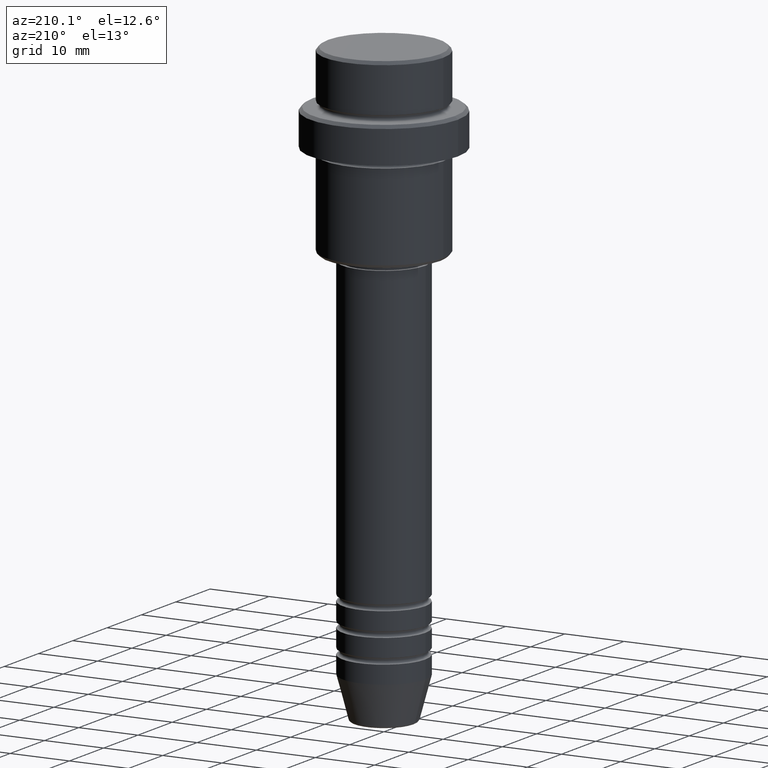
[diagram: clean part render]
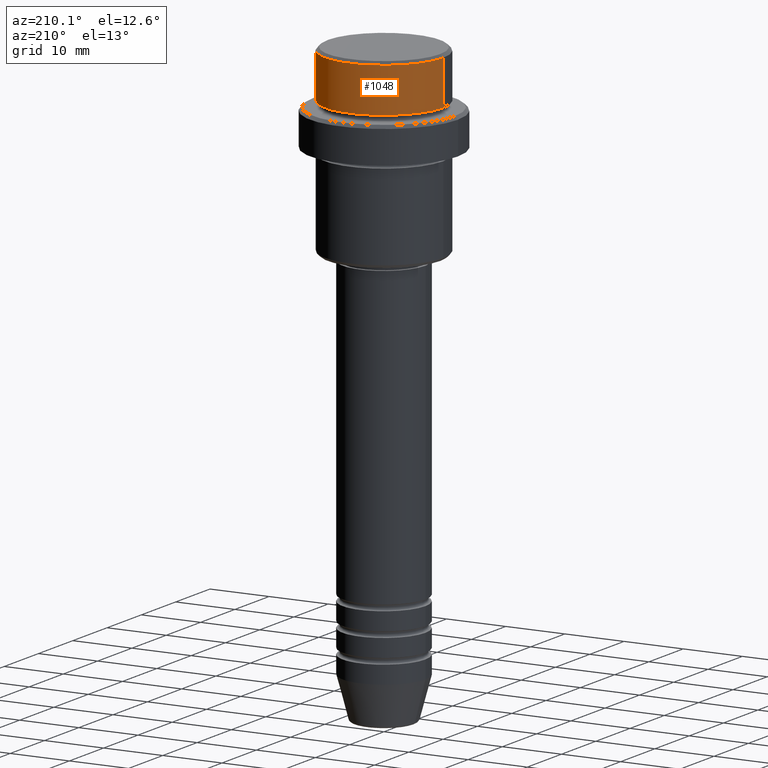
[diagram: same view with one face highlighted and labeled with its STEP entity id]
A machine part, auxiliary view. The second image highlights one B-rep face of the part: STEP entity #1048.
In plain terms, the highlighted cylindrical surface (partial cylindrical patch) has radius 10 mm, axis along (-0, -0, 1).
Its self-contained STEP definition (entity closure, byte-faithful):
#27 = ORIENTED_EDGE ( 'NONE', *, *, #802, .F. ) ;
#55 = EDGE_CURVE ( 'NONE', #1348, #685, #513, .T. ) ;
#58 = CARTESIAN_POINT ( 'NONE',  ( 9.999999999999998224, 0.000000000000000000, 0.000000000000000000 ) ) ;
#96 = DIRECTION ( 'NONE',  ( 0.000000000000000000, 0.000000000000000000, -1.000000000000000000 ) ) ;
#114 = EDGE_LOOP ( 'NONE', ( #286, #436, #591, #27 ) ) ;
#174 = VECTOR ( 'NONE', #1163, 1000.000000000000000 ) ;
#176 = CARTESIAN_POINT ( 'NONE',  ( -9.999999999999998224, 1.224646799147353059E-15, 0.000000000000000000 ) ) ;
#220 = AXIS2_PLACEMENT_3D ( 'NONE', #1168, #1375, #291 ) ;
#286 = ORIENTED_EDGE ( 'NONE', *, *, #1067, .T. ) ;
#291 = DIRECTION ( 'NONE',  ( 1.000000000000000000, 0.000000000000000000, 0.000000000000000000 ) ) ;
#337 = CARTESIAN_POINT ( 'NONE',  ( 0.000000000000000000, 0.000000000000000000, 0.000000000000000000 ) ) ;
#354 = VERTEX_POINT ( 'NONE', #1152 ) ;
#411 = LINE ( 'NONE', #58, #735 ) ;
#429 = AXIS2_PLACEMENT_3D ( 'NONE', #337, #749, #1156 ) ;
#436 = ORIENTED_EDGE ( 'NONE', *, *, #55, .T. ) ;
#507 = DIRECTION ( 'NONE',  ( -0.000000000000000000, -0.000000000000000000, 1.000000000000000000 ) ) ;
#513 = LINE ( 'NONE', #176, #174 ) ;
#591 = ORIENTED_EDGE ( 'NONE', *, *, #659, .T. ) ;
#642 = CARTESIAN_POINT ( 'NONE',  ( 0.000000000000000000, 0.000000000000000000, -0.4999999999999970024 ) ) ;
#647 = CARTESIAN_POINT ( 'NONE',  ( -9.999999999999998224, 1.224646799147353059E-15, -0.4999999999999970024 ) ) ;
#659 = EDGE_CURVE ( 'NONE', #685, #354, #876, .T. ) ;
#685 = VERTEX_POINT ( 'NONE', #647 ) ;
#735 = VECTOR ( 'NONE', #507, 1000.000000000000000 ) ;
#749 = DIRECTION ( 'NONE',  ( -0.000000000000000000, -0.000000000000000000, 1.000000000000000000 ) ) ;
#802 = EDGE_CURVE ( 'NONE', #1001, #354, #411, .T. ) ;
#825 = CIRCLE ( 'NONE', #220, 9.999999999999998224 ) ;
#876 = CIRCLE ( 'NONE', #921, 9.999999999999998224 ) ;
#921 = AXIS2_PLACEMENT_3D ( 'NONE', #642, #96, #968 ) ;
#968 = DIRECTION ( 'NONE',  ( 1.000000000000000000, 0.000000000000000000, 0.000000000000000000 ) ) ;
#1001 = VERTEX_POINT ( 'NONE', #1188 ) ;
#1048 = ADVANCED_FACE ( 'NONE', ( #1118 ), #1308, .T. ) ;
#1067 = EDGE_CURVE ( 'NONE', #1001, #1348, #825, .T. ) ;
#1118 = FACE_OUTER_BOUND ( 'NONE', #114, .T. ) ;
#1152 = CARTESIAN_POINT ( 'NONE',  ( 9.999999999999998224, 0.000000000000000000, -0.4999999999999970024 ) ) ;
#1156 = DIRECTION ( 'NONE',  ( 1.000000000000000000, 0.000000000000000000, 0.000000000000000000 ) ) ;
#1163 = DIRECTION ( 'NONE',  ( -0.000000000000000000, -0.000000000000000000, 1.000000000000000000 ) ) ;
#1168 = CARTESIAN_POINT ( 'NONE',  ( 0.000000000000000000, 0.000000000000000000, -7.999999999999998224 ) ) ;
#1188 = CARTESIAN_POINT ( 'NONE',  ( 9.999999999999998224, 0.000000000000000000, -7.999999999999998224 ) ) ;
#1308 = CYLINDRICAL_SURFACE ( 'NONE', #429, 9.999999999999998224 ) ;
#1348 = VERTEX_POINT ( 'NONE', #1372 ) ;
#1372 = CARTESIAN_POINT ( 'NONE',  ( -9.999999999999998224, 1.224646799147353059E-15, -7.999999999999998224 ) ) ;
#1375 = DIRECTION ( 'NONE',  ( -0.000000000000000000, -0.000000000000000000, 1.000000000000000000 ) ) ;